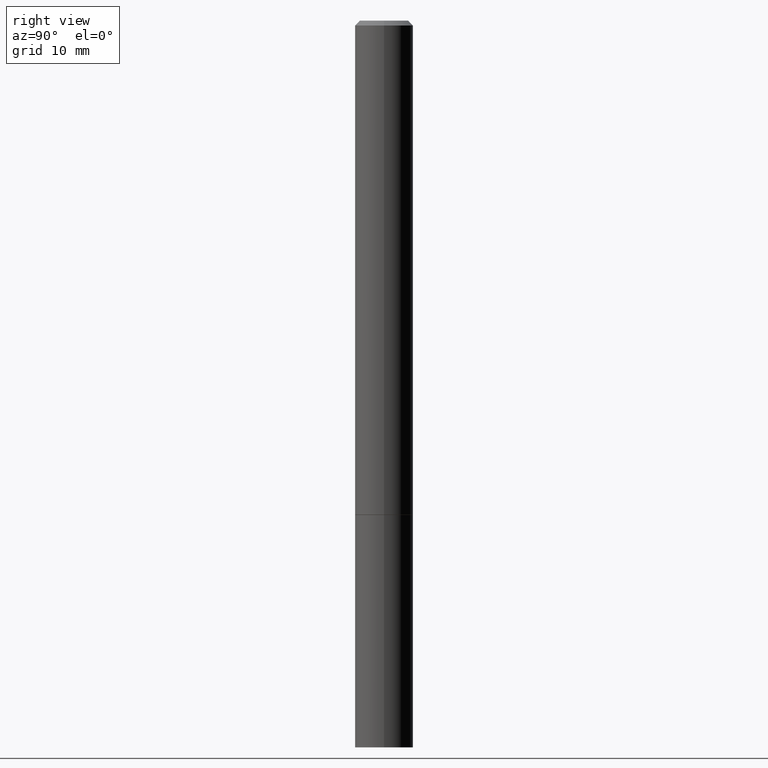
[diagram: clean part render]
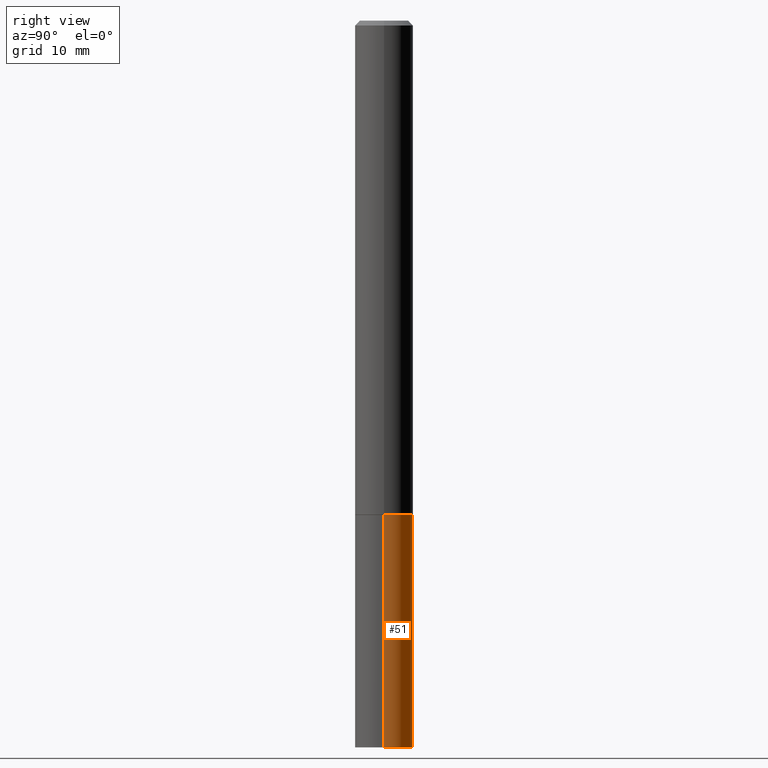
[diagram: same view with one face highlighted and labeled with its STEP entity id]
A machine part, right view. The second image highlights one B-rep face of the part: STEP entity #51.
In plain terms, the highlighted cylindrical surface (edge-blend (fillet) strip) has radius 2.9997 mm, axis along (-0, 0, 1).
Its self-contained STEP definition (entity closure, byte-faithful):
#22 = CARTESIAN_POINT ( 'NONE',  ( 0.000000000000000000, 0.000000000000000000, 0.000000000000000000 ) ) ;
#29 = EDGE_CURVE ( 'NONE', #354, #145, #191, .T. ) ;
#37 = VECTOR ( 'NONE', #286, 39.37007874015748143 ) ;
#40 = VERTEX_POINT ( 'NONE', #334 ) ;
#51 = ADVANCED_FACE ( 'NONE', ( #206 ), #312, .T. ) ;
#55 = DIRECTION ( 'NONE',  ( 1.000000000000000000, -6.982962677686266711E-15, 4.876176775795936353E-29 ) ) ;
#60 = LINE ( 'NONE', #325, #220 ) ;
#65 = CIRCLE ( 'NONE', #294, 0.1180999999999999966 ) ;
#74 = EDGE_LOOP ( 'NONE', ( #357, #136, #300, #251 ) ) ;
#92 = CARTESIAN_POINT ( 'NONE',  ( -0.1180999999999999966, -7.820944767866917317E-15, -2.952799999999999869 ) ) ;
#111 = CARTESIAN_POINT ( 'NONE',  ( -0.1180999999999999966, 8.391509709326782957E-16, -5.809262341591043784E-30 ) ) ;
#132 = EDGE_CURVE ( 'NONE', #40, #145, #299, .T. ) ;
#136 = ORIENTED_EDGE ( 'NONE', *, *, #29, .T. ) ;
#137 = EDGE_CURVE ( 'NONE', #351, #354, #65, .T. ) ;
#144 = DIRECTION ( 'NONE',  ( -2.445468806185136597E-29, 3.491481338843145583E-15, 1.000000000000000000 ) ) ;
#145 = VERTEX_POINT ( 'NONE', #212 ) ;
#153 = CARTESIAN_POINT ( 'NONE',  ( 4.910256815939135309E-29, -7.010545380263150922E-15, -2.007899999999999796 ) ) ;
#156 = CARTESIAN_POINT ( 'NONE',  ( 7.220980290903470182E-29, -1.030964609733603853E-14, -2.952799999999999869 ) ) ;
#187 = DIRECTION ( 'NONE',  ( 1.000000000000000000, -6.982962677686265133E-15, 0.000000000000000000 ) ) ;
#191 = LINE ( 'NONE', #111, #37 ) ;
#204 = AXIS2_PLACEMENT_3D ( 'NONE', #153, #268, #187 ) ;
#206 = FACE_OUTER_BOUND ( 'NONE', #74, .T. ) ;
#211 = DIRECTION ( 'NONE',  ( -2.445468806185136597E-29, 3.491481338843145583E-15, 1.000000000000000000 ) ) ;
#212 = CARTESIAN_POINT ( 'NONE',  ( -0.1180999999999999966, -7.820944767866917317E-15, -2.007899999999999796 ) ) ;
#218 = CARTESIAN_POINT ( 'NONE',  ( 0.1180999999999999966, -1.113433398957078679E-14, -2.952799999999999869 ) ) ;
#220 = VECTOR ( 'NONE', #361, 39.37007874015748143 ) ;
#240 = DIRECTION ( 'NONE',  ( 1.000000000000000000, -6.982962677686273021E-15, 0.000000000000000000 ) ) ;
#251 = ORIENTED_EDGE ( 'NONE', *, *, #360, .F. ) ;
#268 = DIRECTION ( 'NONE',  ( -2.445468806185136597E-29, 3.491481338843145583E-15, 1.000000000000000000 ) ) ;
#286 = DIRECTION ( 'NONE',  ( -2.445468806185136877E-29, 3.491481338843145188E-15, 1.000000000000000000 ) ) ;
#294 = AXIS2_PLACEMENT_3D ( 'NONE', #156, #211, #240 ) ;
#299 = CIRCLE ( 'NONE', #204, 0.1180999999999999966 ) ;
#300 = ORIENTED_EDGE ( 'NONE', *, *, #132, .F. ) ;
#312 = CYLINDRICAL_SURFACE ( 'NONE', #341, 0.1180999999999999966 ) ;
#325 = CARTESIAN_POINT ( 'NONE',  ( 0.1180999999999999966, -8.246878922347480654E-16, 5.758764772215000440E-30 ) ) ;
#334 = CARTESIAN_POINT ( 'NONE',  ( 0.1180999999999999966, -7.835233272497899184E-15, -2.007899999999999796 ) ) ;
#341 = AXIS2_PLACEMENT_3D ( 'NONE', #22, #144, #55 ) ;
#351 = VERTEX_POINT ( 'NONE', #218 ) ;
#354 = VERTEX_POINT ( 'NONE', #92 ) ;
#357 = ORIENTED_EDGE ( 'NONE', *, *, #137, .T. ) ;
#360 = EDGE_CURVE ( 'NONE', #351, #40, #60, .T. ) ;
#361 = DIRECTION ( 'NONE',  ( -2.445468806185136877E-29, 3.491481338843145188E-15, 1.000000000000000000 ) ) ;